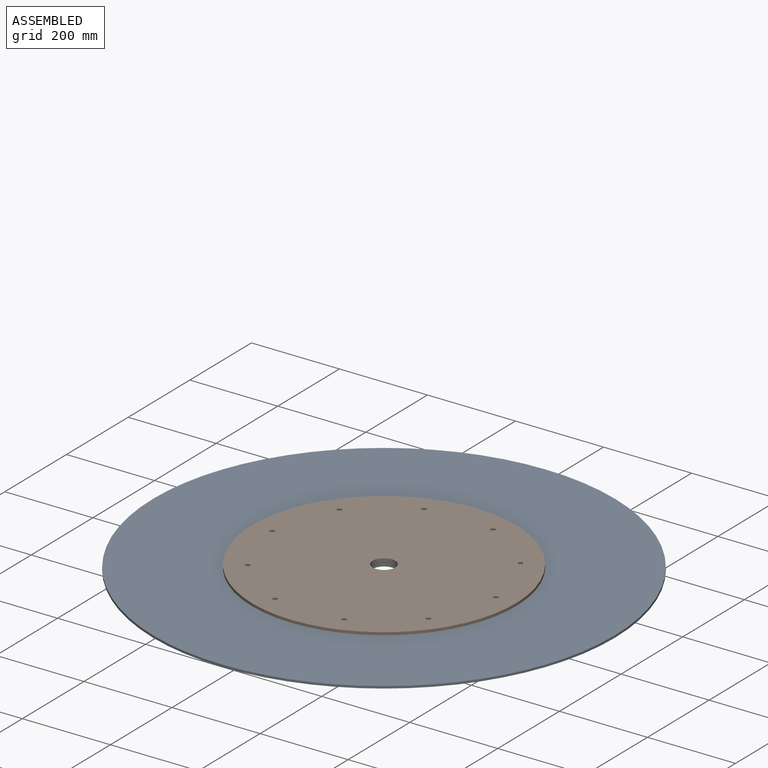
[diagram: assembled view]
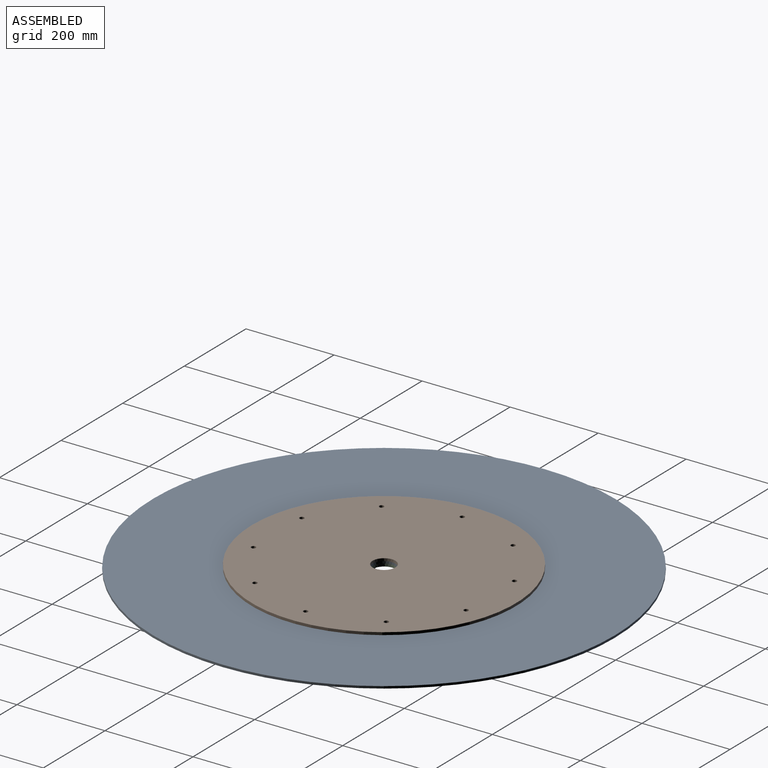
[diagram: assembled view, second angle]
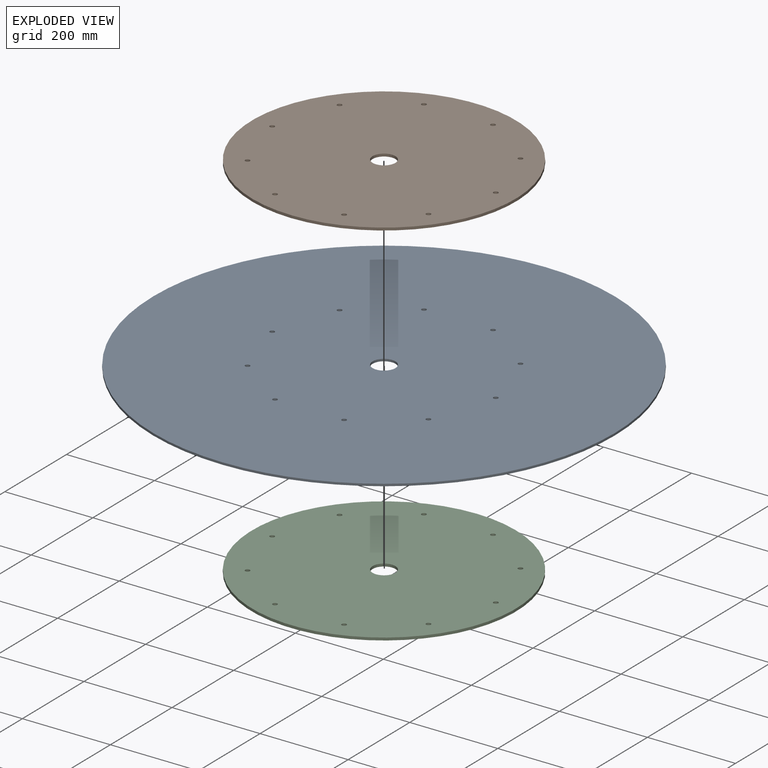
[diagram: exploded view]
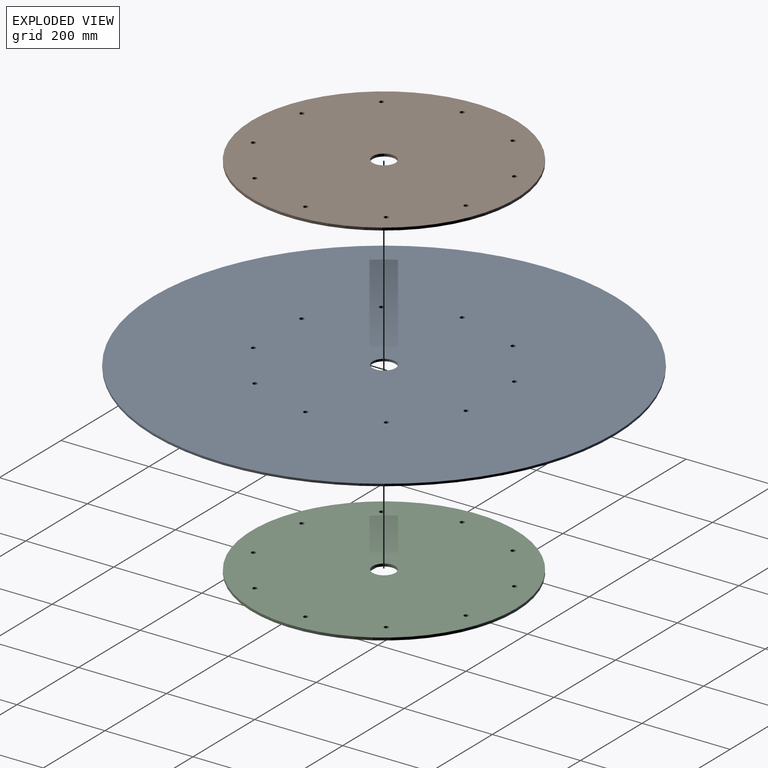
[diagram: exploded view, second angle]
ASSEMBLY  parts=3 mates=4
PART A: 14 faces, bbox 1049x1049x5 mm
  f0: cylinder r=26mm len=52mm, axis (0,0,-1), area 816.8mm2, adj f12,f13
  f1: cylinder r=5.25mm len=10.5mm, axis (0,0,-1), area 164.9mm2, adj f12,f13
  f2: cylinder r=5.25mm len=10.5mm, axis (0,0,-1), area 164.9mm2, adj f12,f13
  f3: cylinder r=5.25mm len=10.5mm, axis (0,0,-1), area 164.9mm2, adj f12,f13
  f4: cylinder r=5.25mm len=10.5mm, axis (0,0,-1), area 164.9mm2, adj f12,f13
  f5: cylinder r=5.25mm len=10.5mm, axis (0,0,-1), area 164.9mm2, adj f12,f13
  f6: cylinder r=5.25mm len=10.5mm, axis (0,0,-1), area 164.9mm2, adj f12,f13
  f7: cylinder r=5.25mm len=10.5mm, axis (0,0,-1), area 164.9mm2, adj f12,f13
  f8: cylinder r=5.25mm len=10.5mm, axis (0,0,-1), area 164.9mm2, adj f12,f13
  f9: cylinder r=5.25mm len=10.5mm, axis (0,0,-1), area 164.9mm2, adj f12,f13
  f10: cylinder r=5.25mm len=10.5mm, axis (0,0,-1), area 164.9mm2, adj f12,f13
  f11: cylinder r=524.5mm len=1049mm, axis (0,0,-1), area 16477.7mm2, adj f12,f13
  f12: plane 1049x1049mm, normal (0,0,1), area 861263.3mm2, adj f0,f1,f2,f3,f4,f5,f6,f7
  f13: plane 1049x1049mm, normal (0,0,-1), area 861263.3mm2, adj f0,f1,f2,f3,f4,f5,f6,f7
PART B: 14 faces, bbox 600x600x6 mm
  f0: cylinder r=26mm len=52mm, axis (0,0,-1), area 980.2mm2, adj f12,f13
  f1: cylinder r=5.25mm len=10.5mm, axis (0,0,-1), area 197.9mm2, adj f12,f13
  f2: cylinder r=5.25mm len=10.5mm, axis (0,0,-1), area 197.9mm2, adj f12,f13
  f3: cylinder r=5.25mm len=10.5mm, axis (0,0,-1), area 197.9mm2, adj f12,f13
  f4: cylinder r=5.25mm len=10.5mm, axis (0,0,-1), area 197.9mm2, adj f12,f13
  f5: cylinder r=5.25mm len=10.5mm, axis (0,0,-1), area 197.9mm2, adj f12,f13
  f6: cylinder r=5.25mm len=10.5mm, axis (0,0,-1), area 197.9mm2, adj f12,f13
  f7: cylinder r=5.25mm len=10.5mm, axis (0,0,-1), area 197.9mm2, adj f12,f13
  f8: cylinder r=5.25mm len=10.5mm, axis (0,0,-1), area 197.9mm2, adj f12,f13
  f9: cylinder r=5.25mm len=10.5mm, axis (0,0,-1), area 197.9mm2, adj f12,f13
  f10: cylinder r=5.25mm len=10.5mm, axis (0,0,-1), area 197.9mm2, adj f12,f13
  f11: cylinder r=300mm len=600mm, axis (0,0,-1), area 11309.7mm2, adj f12,f13
  f12: plane 600x600mm, normal (0,0,1), area 279753.7mm2, adj f0,f1,f2,f3,f4,f5,f6,f7
  f13: plane 600x600mm, normal (0,0,-1), area 279753.7mm2, adj f0,f1,f2,f3,f4,f5,f6,f7
PART C: same geometry as B
PLACE A t=(-99.48,-55.76,-14.78)mm fixed
PLACE B rot(axis=(0,0,-1),90deg) t=(-99.48,-55.76,-9.78)mm
PLACE C rot(axis=(0,0,1),18deg) t=(-99.48,-55.76,-20.78)mm
MATE pin_slot A.f4 <-> B.f4  axis (0,0,1) through (-177.97,185.81,-9.78)mm
MATE revolute C.f0 <-> A.f0  axis (0,0,1) through (-99.48,-55.76,-14.78)mm
MATE revolute B.f0 <-> A.f0  axis (0,0,-1) through (-99.48,-55.76,-6.78)mm
MATE revolute A.f2 <-> C.f9  axis (0,0,-1) through (106.01,93.54,-14.78)mm
